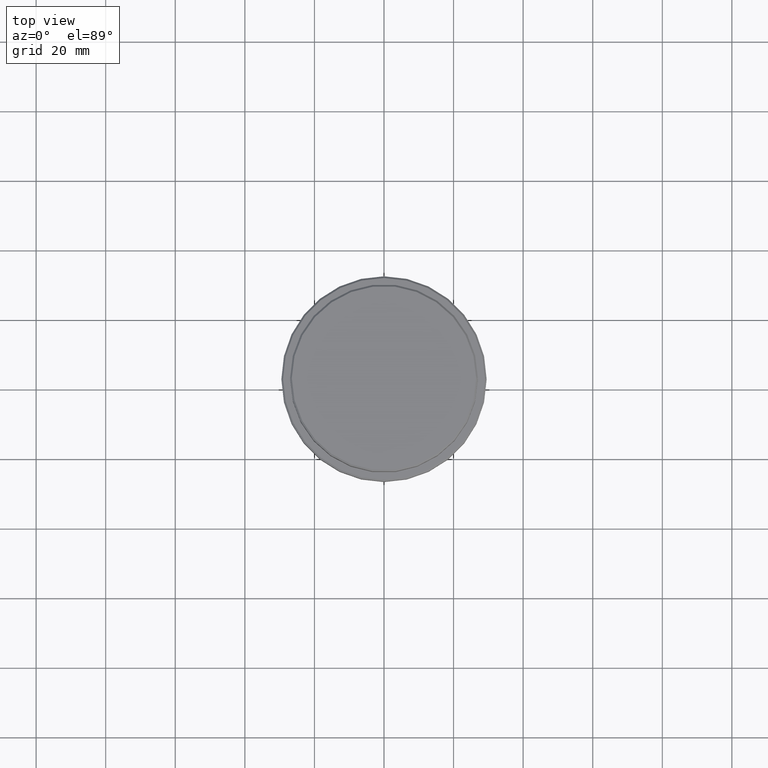
[diagram: clean part render]
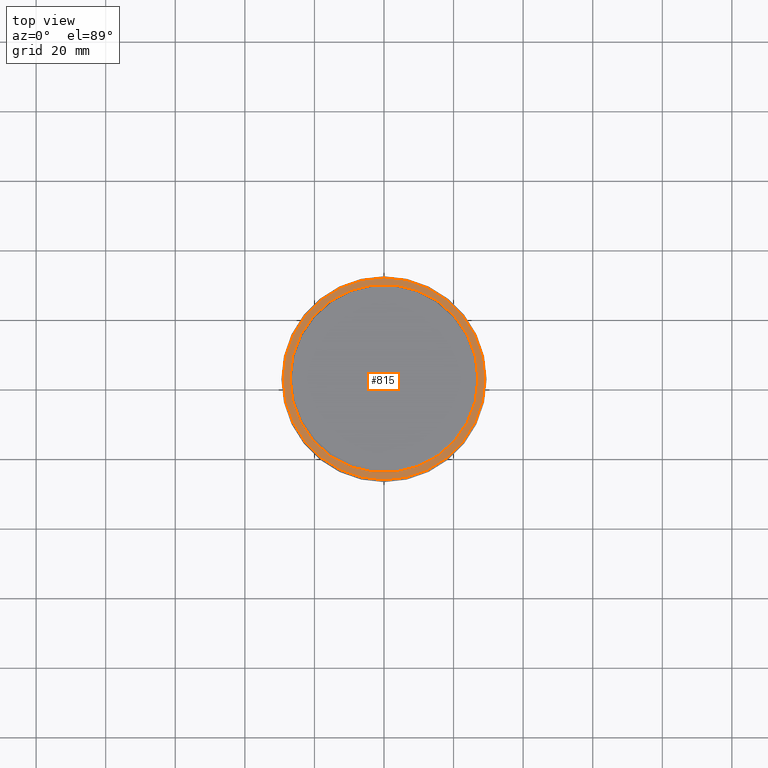
[diagram: same view with one face highlighted and labeled with its STEP entity id]
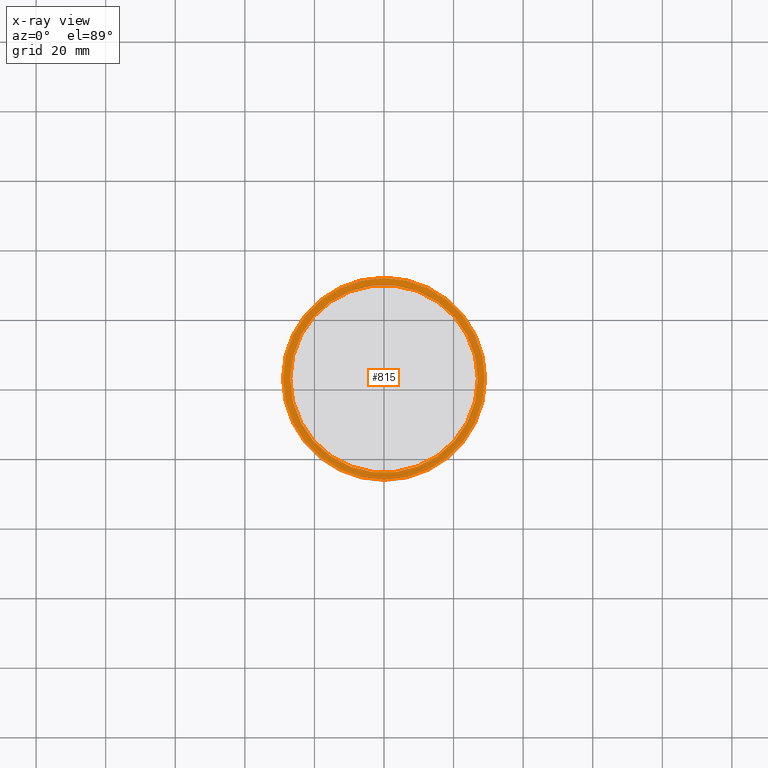
[diagram: x-ray of the same camera — body ghosted, the highlighted face saturated]
A machine part, top view. The second image highlights one B-rep face of the part: STEP entity #815.
The next image is the same camera in x-ray: the body ghosted, the highlighted face saturated — about 0% of this face is hidden behind the body in this view.
In plain terms, the highlighted planar face has unit normal (0, -0, 1).
Its self-contained STEP definition (entity closure, byte-faithful):
#7 = DIRECTION ( 'NONE',  ( 1.000000000000000000, 0.000000000000000000, 0.000000000000000000 ) ) ;
#21 = DIRECTION ( 'NONE',  ( -0.000000000000000000, -0.000000000000000000, 1.000000000000000000 ) ) ;
#24 = CARTESIAN_POINT ( 'NONE',  ( 28.99999999999999645, 3.582091887506007817E-15, -12.00000000000000355 ) ) ;
#41 = AXIS2_PLACEMENT_3D ( 'NONE', #451, #908, #1340 ) ;
#68 = EDGE_CURVE ( 'NONE', #965, #900, #95, .T. ) ;
#78 = CARTESIAN_POINT ( 'NONE',  ( 26.99999999999999645, 0.000000000000000000, -12.00000000000000355 ) ) ;
#95 = CIRCLE ( 'NONE', #660, 28.99999999999999645 ) ;
#125 = DIRECTION ( 'NONE',  ( -0.000000000000000000, -0.000000000000000000, 1.000000000000000000 ) ) ;
#132 = CARTESIAN_POINT ( 'NONE',  ( 0.000000000000000000, 0.000000000000000000, -12.00000000000000355 ) ) ;
#206 = CIRCLE ( 'NONE', #41, 26.99999999999999645 ) ;
#239 = PLANE ( 'NONE',  #922 ) ;
#245 = DIRECTION ( 'NONE',  ( 1.000000000000000000, 0.000000000000000000, 0.000000000000000000 ) ) ;
#357 = ORIENTED_EDGE ( 'NONE', *, *, #1203, .T. ) ;
#427 = DIRECTION ( 'NONE',  ( 1.000000000000000000, 0.000000000000000000, 0.000000000000000000 ) ) ;
#448 = EDGE_LOOP ( 'NONE', ( #1231, #357 ) ) ;
#451 = CARTESIAN_POINT ( 'NONE',  ( 0.000000000000000000, 0.000000000000000000, -12.00000000000000355 ) ) ;
#567 = FACE_OUTER_BOUND ( 'NONE', #1162, .T. ) ;
#577 = FACE_BOUND ( 'NONE', #448, .T. ) ;
#627 = VERTEX_POINT ( 'NONE', #78 ) ;
#660 = AXIS2_PLACEMENT_3D ( 'NONE', #674, #125, #685 ) ;
#674 = CARTESIAN_POINT ( 'NONE',  ( 0.000000000000000000, 0.000000000000000000, -12.00000000000000355 ) ) ;
#677 = CARTESIAN_POINT ( 'NONE',  ( 0.000000000000000000, 26.49999999999999645, -12.00000000000000355 ) ) ;
#685 = DIRECTION ( 'NONE',  ( 1.000000000000000000, 0.000000000000000000, 0.000000000000000000 ) ) ;
#751 = CARTESIAN_POINT ( 'NONE',  ( 0.000000000000000000, 0.000000000000000000, -12.00000000000000355 ) ) ;
#763 = ORIENTED_EDGE ( 'NONE', *, *, #1357, .T. ) ;
#815 = ADVANCED_FACE ( 'NONE', ( #567, #577 ), #239, .T. ) ;
#846 = ORIENTED_EDGE ( 'NONE', *, *, #68, .T. ) ;
#853 = EDGE_CURVE ( 'NONE', #627, #1381, #206, .T. ) ;
#872 = CIRCLE ( 'NONE', #1082, 28.99999999999999645 ) ;
#900 = VERTEX_POINT ( 'NONE', #24 ) ;
#908 = DIRECTION ( 'NONE',  ( 0.000000000000000000, 0.000000000000000000, -1.000000000000000000 ) ) ;
#922 = AXIS2_PLACEMENT_3D ( 'NONE', #677, #1006, #245 ) ;
#965 = VERTEX_POINT ( 'NONE', #1356 ) ;
#966 = AXIS2_PLACEMENT_3D ( 'NONE', #751, #975, #427 ) ;
#975 = DIRECTION ( 'NONE',  ( 0.000000000000000000, 0.000000000000000000, -1.000000000000000000 ) ) ;
#1006 = DIRECTION ( 'NONE',  ( 0.000000000000000000, -0.000000000000000000, 1.000000000000000000 ) ) ;
#1082 = AXIS2_PLACEMENT_3D ( 'NONE', #132, #21, #7 ) ;
#1126 = CIRCLE ( 'NONE', #966, 26.99999999999999645 ) ;
#1162 = EDGE_LOOP ( 'NONE', ( #846, #763 ) ) ;
#1203 = EDGE_CURVE ( 'NONE', #1381, #627, #1126, .T. ) ;
#1231 = ORIENTED_EDGE ( 'NONE', *, *, #853, .T. ) ;
#1319 = CARTESIAN_POINT ( 'NONE',  ( -26.99999999999999645, 3.306546357697853339E-15, -12.00000000000000355 ) ) ;
#1340 = DIRECTION ( 'NONE',  ( 1.000000000000000000, 0.000000000000000000, 0.000000000000000000 ) ) ;
#1356 = CARTESIAN_POINT ( 'NONE',  ( -28.99999999999999645, 0.000000000000000000, -12.00000000000000355 ) ) ;
#1357 = EDGE_CURVE ( 'NONE', #900, #965, #872, .T. ) ;
#1381 = VERTEX_POINT ( 'NONE', #1319 ) ;